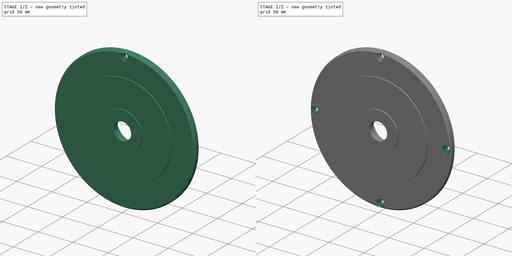
[diagram: build sequence overview — one tinted view per stage of 2, left to right]
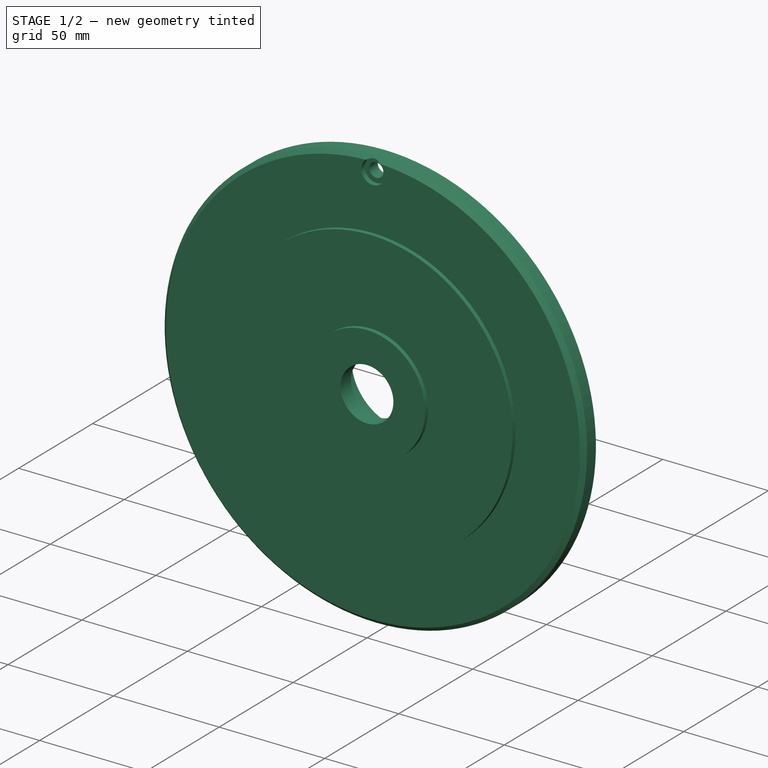
[diagram: stage 1 of 2 — iso view after this stage's code; geometry added in this stage tinted green]
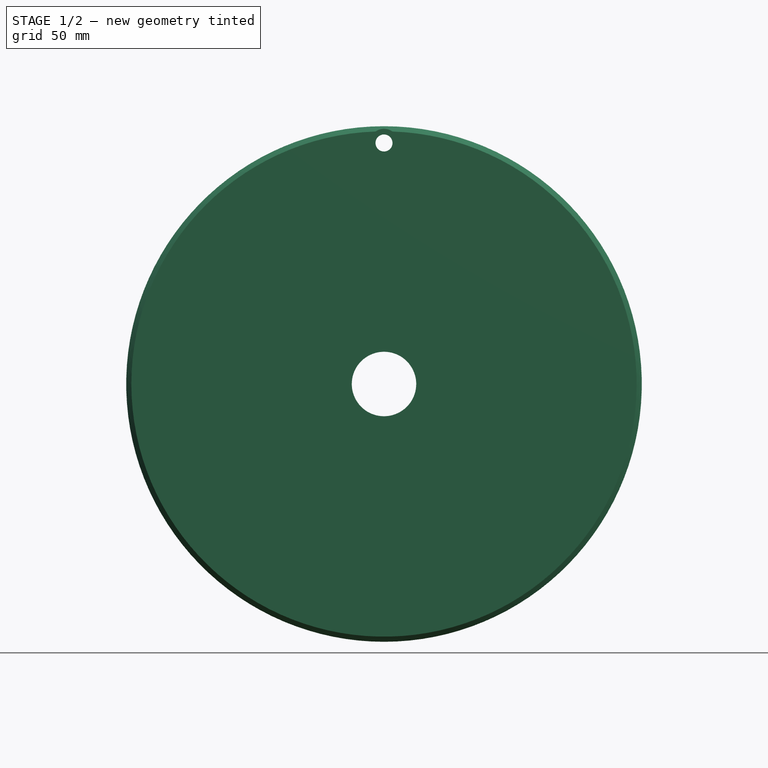
[diagram: stage 1 of 2 — front view after this stage's code; geometry added in this stage tinted green]
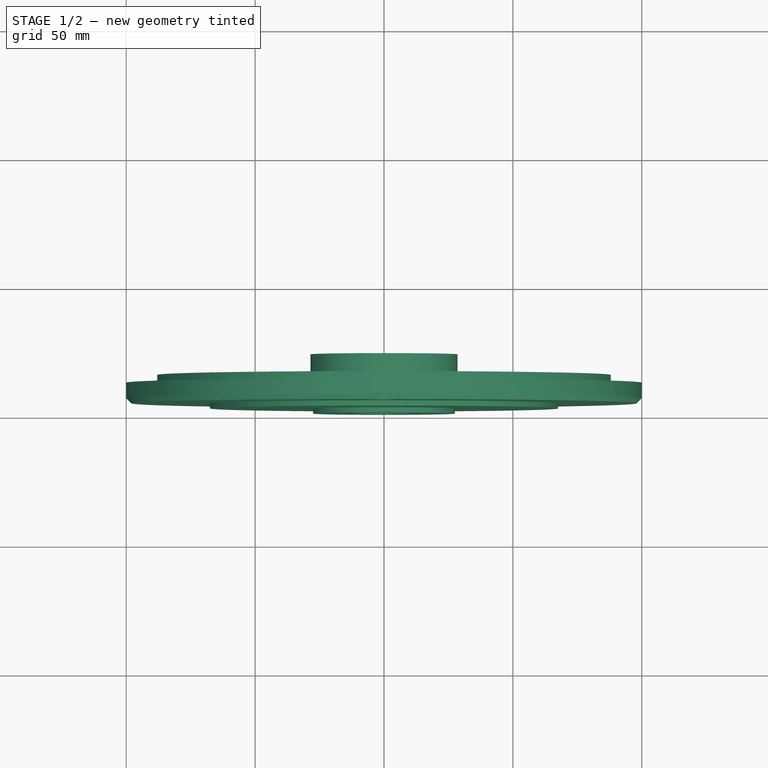
[diagram: stage 1 of 2 — top view after this stage's code; geometry added in this stage tinted green]
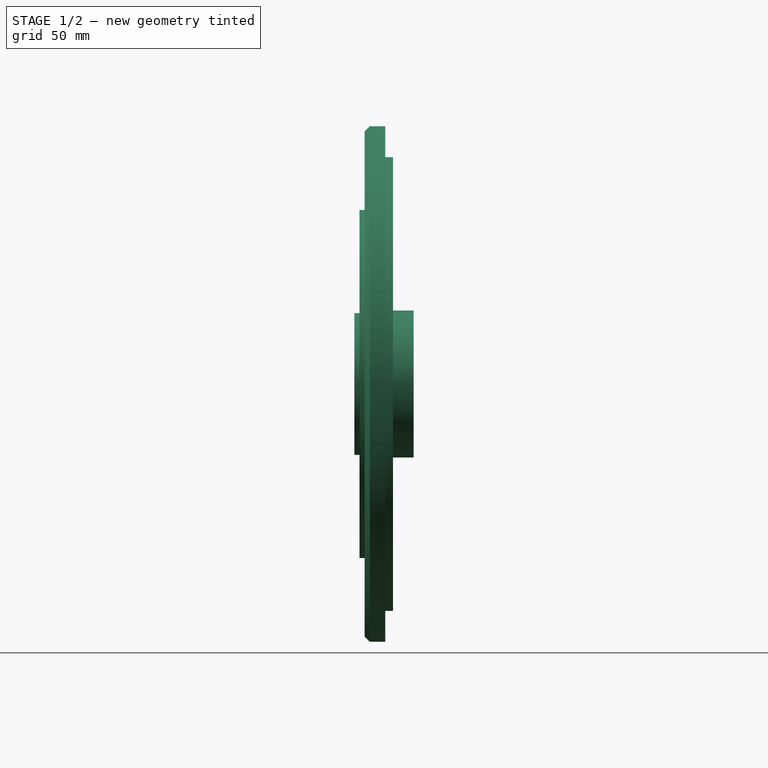
[diagram: stage 1 of 2 — right view after this stage's code; geometry added in this stage tinted green]
FCSTD DOCUMENT  (FreeCAD 0.20R29126 (Git))
Label: electric-motor-endcap
License: All rights reserved
LicenseURL: http://en.wikipedia.org/wiki/All_rights_reserved
objects: Sketcher::SketchObject×2, PartDesign::Revolution×1, PartDesign::Hole×1, PartDesign::PolarPattern×1, PartDesign::Body×1
note: 8 computed .brp shape members not serialized (recipe doc carries the construction recipe); baked Part::Feature solids carry a one-line shape summary decoded from their .brp

FEATURE [Sketcher::SketchObject] Sketch
  FullyConstrained = true
  MapMode = 5
  Placement = pos=(0,0,0) rot=(0.57735,0.57735,0.57735;2.0944rad)
  Support = -> [YZ_Plane]
  sketch-geometry (19):
    g0: LineSegment StartX=6 StartY=100 StartZ=0 EndX=12 EndY=100 EndZ=0
    g1: LineSegment StartX=12 StartY=100 StartZ=0 EndX=12 EndY=88 EndZ=0
    g2: LineSegment StartX=12 StartY=88 StartZ=0 EndX=15 EndY=88 EndZ=0
    g3: LineSegment StartX=15 StartY=88 StartZ=0 EndX=15 EndY=85 EndZ=0
    g4: LineSegment StartX=15 StartY=85 StartZ=0 EndX=8 EndY=85 EndZ=0
    g5: LineSegment StartX=8 StartY=85 StartZ=0 EndX=8 EndY=28.5 EndZ=0
    g6: LineSegment StartX=8 StartY=28.5 StartZ=0 EndX=23 EndY=28.5 EndZ=0
    g7: LineSegment StartX=23 StartY=28.5 StartZ=0 EndX=23 EndY=23.5 EndZ=0
    g8: LineSegment StartX=23 StartY=23.5 StartZ=0 EndX=10 EndY=23.5 EndZ=0
    g9: LineSegment StartX=10 StartY=23.5 StartZ=0 EndX=10 EndY=21.5 EndZ=0
    g10: LineSegment StartX=10 StartY=21.5 StartZ=0 EndX=7 EndY=21.5 EndZ=0
    g11: LineSegment StartX=7 StartY=21.5 StartZ=0 EndX=7 EndY=12.5 EndZ=0
    g12: LineSegment StartX=7 StartY=12.5 StartZ=0 EndX=0 EndY=12.5 EndZ=0
    g13: LineSegment StartX=0 StartY=12.5 StartZ=0 EndX=0 EndY=27.5 EndZ=0
    g14: LineSegment StartX=0 StartY=27.5 StartZ=0 EndX=2 EndY=27.5 EndZ=0
    g15: LineSegment StartX=2 StartY=27.5 StartZ=0 EndX=2 EndY=67.5 EndZ=0
    g16: LineSegment StartX=2 StartY=67.5 StartZ=0 EndX=4 EndY=67.5 EndZ=0
    g17: LineSegment StartX=4 StartY=67.5 StartZ=0 EndX=4 EndY=98 EndZ=0
    g18: LineSegment StartX=4 StartY=98 StartZ=0 EndX=6 EndY=100 EndZ=0
  constraints (57):
    c: Horizontal(g0)
    c: Coincident(g0,g1)
    c: Vertical(g1)
    c: Coincident(g1,g2)
    c: Horizontal(g2)
    c: Coincident(g2,g3)
    c: Coincident(g3,g4)
    c: Horizontal(g4)
    c: Coincident(g4,g5)
    c: Vertical(g5)
    c: Coincident(g5,g6)
    c: Coincident(g6,g7)
    c: Vertical(g7)
    c: Coincident(g7,g8)
    c: Horizontal(g8)
    c: Coincident(g8,g9)
    c: Vertical(g9)
    c: Coincident(g9,g10)
    c: Horizontal(g10)
    c: Coincident(g10,g11)
    c: Vertical(g11)
    c: Coincident(g11,g12)
    c: Coincident(g12,g13)
    c: Vertical(g13)
    c: Coincident(g13,g14)
    c: Horizontal(g14)
    c: Vertical(g15)
    c: Coincident(g15,g16)
    c: Horizontal(g16)
    c: Coincident(g16,g17)
    c: Coincident(g17,g18)
    c: Coincident(g18,g0)
    c: Horizontal(g6)
    c: Horizontal(g12)
    c: Vertical(g17)
    c: Angle(g18,g0) = 2.35619
    c: DistanceX(g17,g0) = 2
    c: DistanceY(g1,g1) = 12
    c: Vertical(g3)
    c: DistanceX(g2,g2) = 3
    c: DistanceX(g16,g0) = 8
    c: DistanceY(g-1,g12) = 12.5
    c: DistanceY(g-1,g0) = 100
    c: DistanceY(g3,g3) = 3
    c: DistanceY(g-1,g7) = 23.5
    c: DistanceY(g7,g7) = 5
    c: DistanceX(g8,g8) = 13
    c: PointOnObject(g12,g-2)
    c: DistanceX(g14,g14) = 2
    c: DistanceX(g10,g10) = 3
    c: Coincident(g15,g14)
    c: DistanceX(g16,g16) = 2
    c: DistanceX(g16,g4) = 4
    c: DistanceY(g14,g16) = 40
    c: DistanceY(g8,g14) = 4
    c: DistanceY(g9,g9) = 2
    c: DistanceX(g8,g0) = 2
FEATURE [PartDesign::Revolution] Revolution
  Angle = 360
  Axis = (1e-16,1,-1e-16)
  Base = (0,0,0)
  Placement = pos=(0,0,0) rot=(0.57735,0.57735,0.57735;2.0944rad)
  Profile = -> Sketch
  ReferenceAxis = -> Y_Axis
  Reversed = true
FEATURE [Sketcher::SketchObject] Sketch001
  FullyConstrained = true
  MapMode = 5
  Placement = pos=(0,0,0) rot=(1,0,0;1.5708rad)
  Support = -> [XZ_Plane]
  sketch-geometry (1):
    g0: Circle CenterX=0 CenterY=93.5 CenterZ=0 NormalX=0 NormalY=0 NormalZ=1 AngleXU=0 Radius=3
  constraints (3):
    c: PointOnObject(g0,g-2)
    c: DistanceY(g-1,g0) = 93.5
    c: Radius(g0) = 3
FEATURE [PartDesign::Hole] Hole
  BaseFeature = -> Revolution
  CustomThreadClearance = 0
  Depth = 572.257
  DepthType = 1
  Diameter = 6.6
  DrillForDepth = false
  DrillPoint = 1
  DrillPointAngle = 118
  HoleCutCountersinkAngle = 90
  HoleCutCustomValues = false
  HoleCutDepth = 6.4
  HoleCutDiameter = 11
  HoleCutType = 11
  ModelThread = false
  Placement = pos=(0,0,0) rot=(0.57735,0.57735,0.57735;2.0944rad)
  Profile = -> Sketch001
  Tapered = false
  TaperedAngle = 90
  ThreadClass = 0
  ThreadDepth = 572.257
  ThreadDepthType = 0
  ThreadDirection = 0
  ThreadFit = 0
  ThreadSize = 14
  ThreadType = 1
  Threaded = false
  UseCustomThreadClearance = false
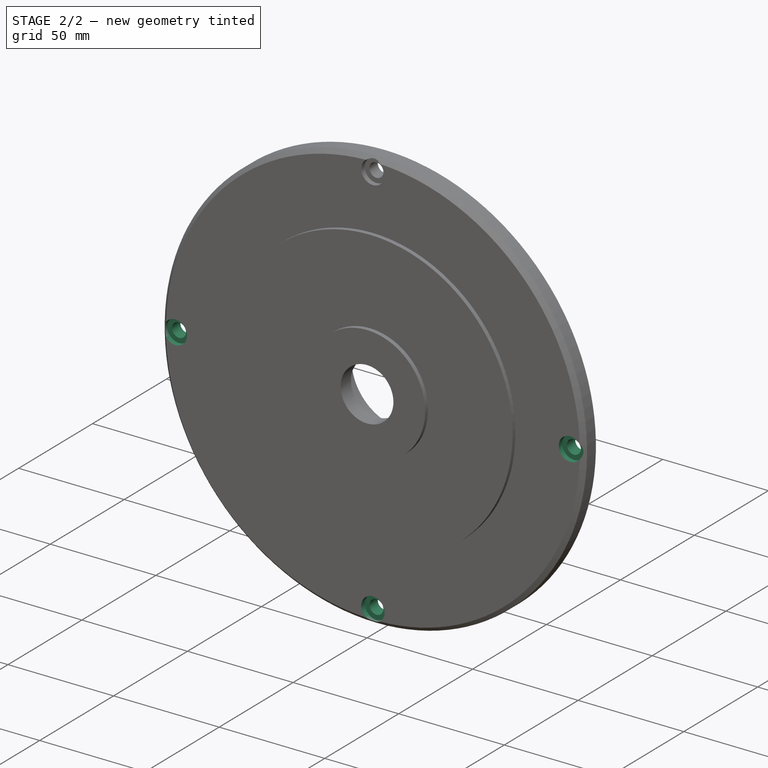
[diagram: stage 2 of 2 — iso view after this stage's code; geometry added in this stage tinted green]
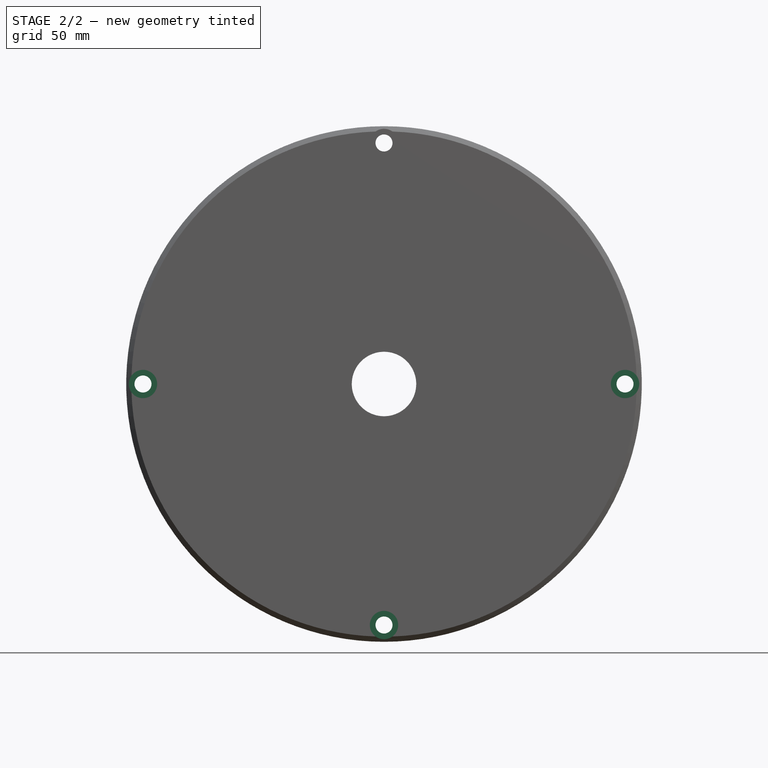
[diagram: stage 2 of 2 — front view after this stage's code; geometry added in this stage tinted green]
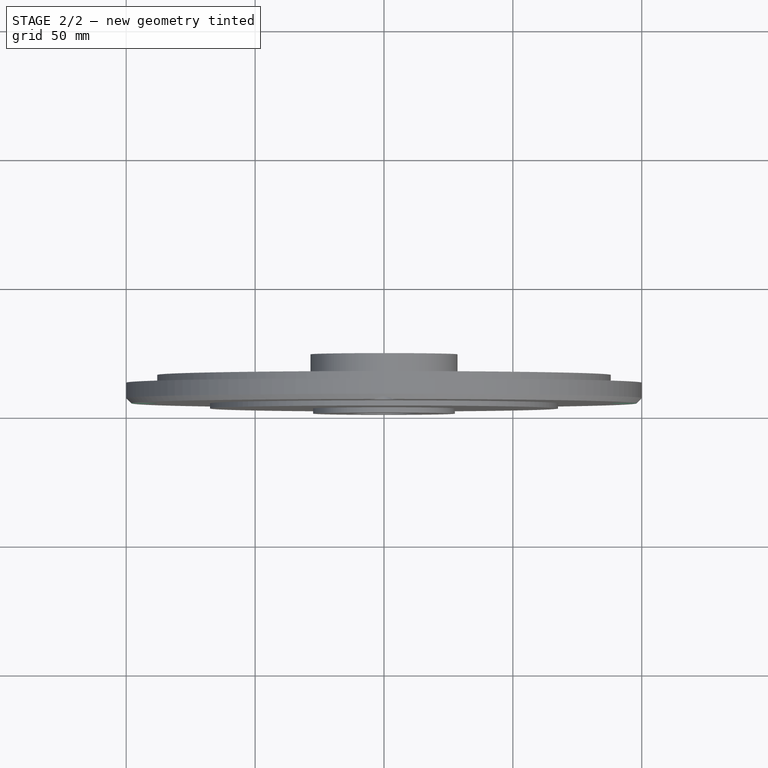
[diagram: stage 2 of 2 — top view after this stage's code; geometry added in this stage tinted green]
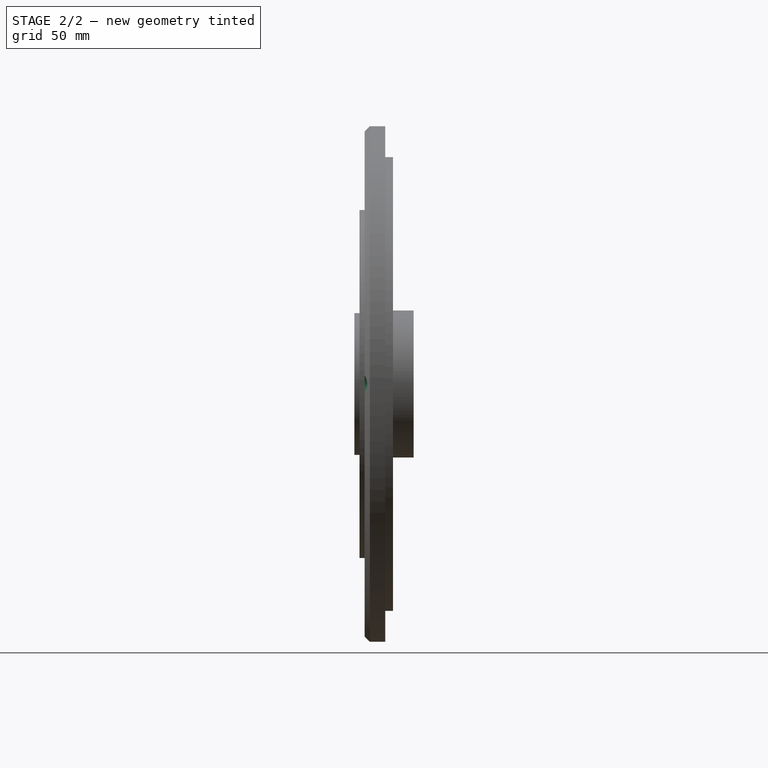
[diagram: stage 2 of 2 — right view after this stage's code; geometry added in this stage tinted green]
FEATURE [PartDesign::PolarPattern] PolarPattern
  Angle = 360
  Axis = -> Y_Axis
  BaseFeature = -> Hole
  Occurrences = 4
  Originals = -> [Hole]
  Placement = pos=(0,0,0) rot=(0.57735,0.57735,0.57735;2.0944rad)
FEATURE [PartDesign::Body] Body
  Group = -> [Sketch,Revolution,Sketch001,Hole,PolarPattern]
  Origin = -> Origin
  Tip = -> PolarPattern
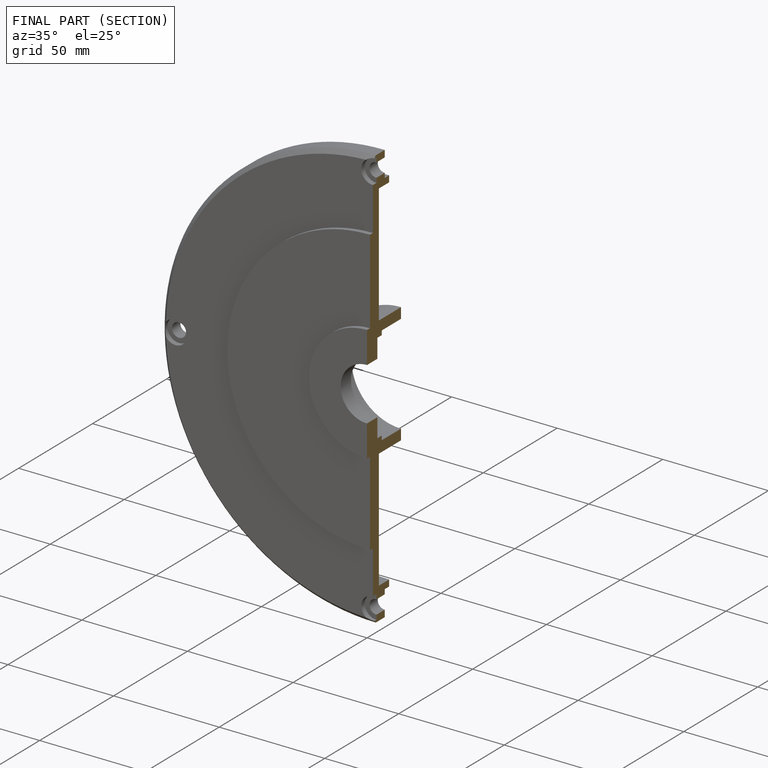
[diagram: finished part — half-section view (interior)]
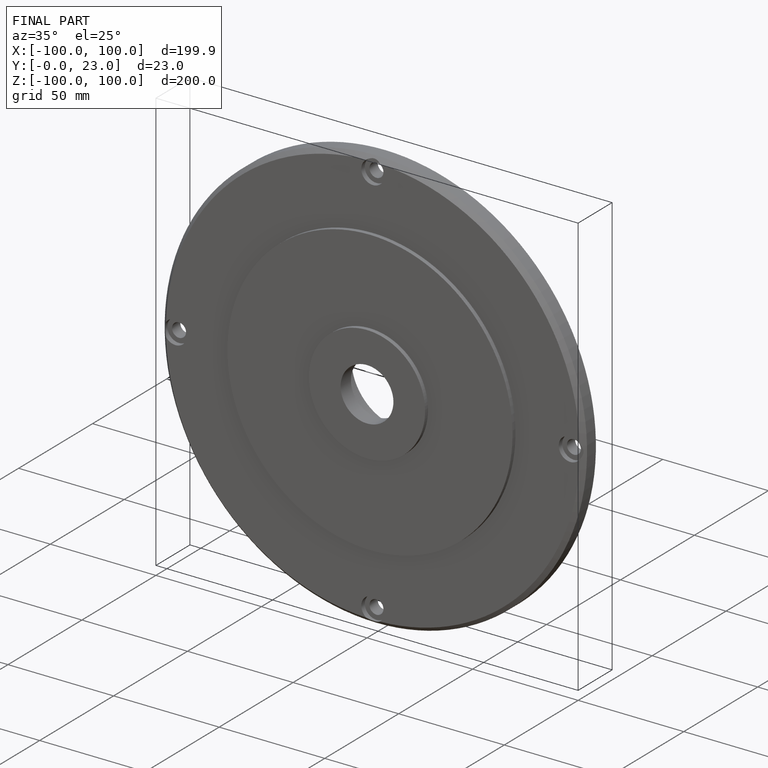
[diagram: finished part — iso view with bounding-box wireframe]
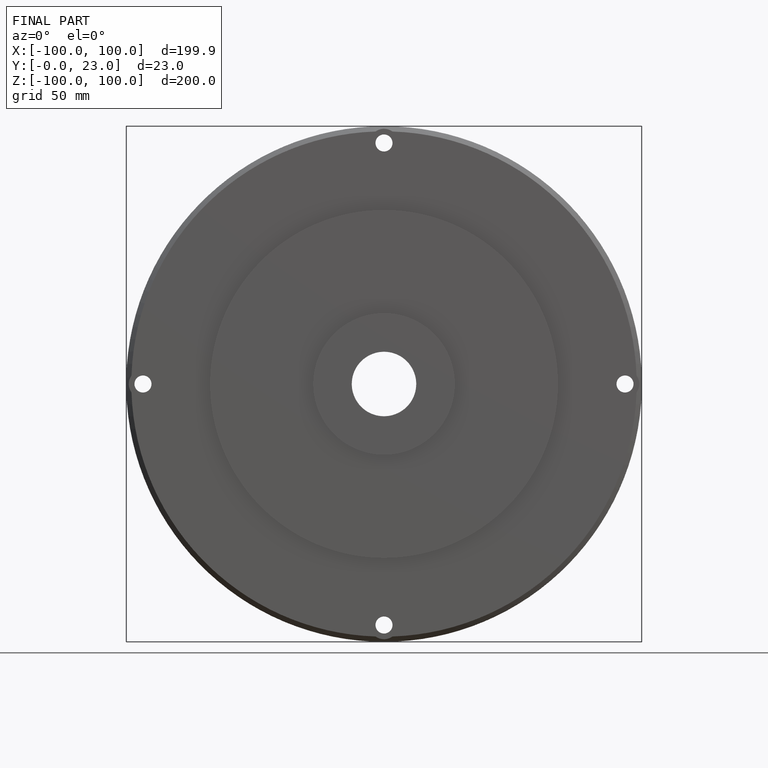
[diagram: finished part — front view with bounding-box wireframe]
